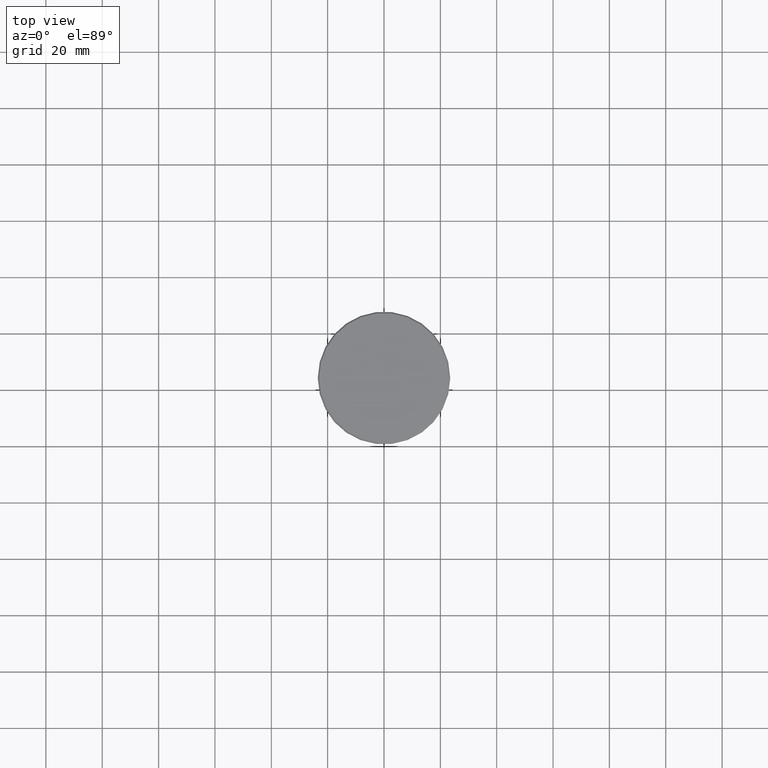
[diagram: clean part render]
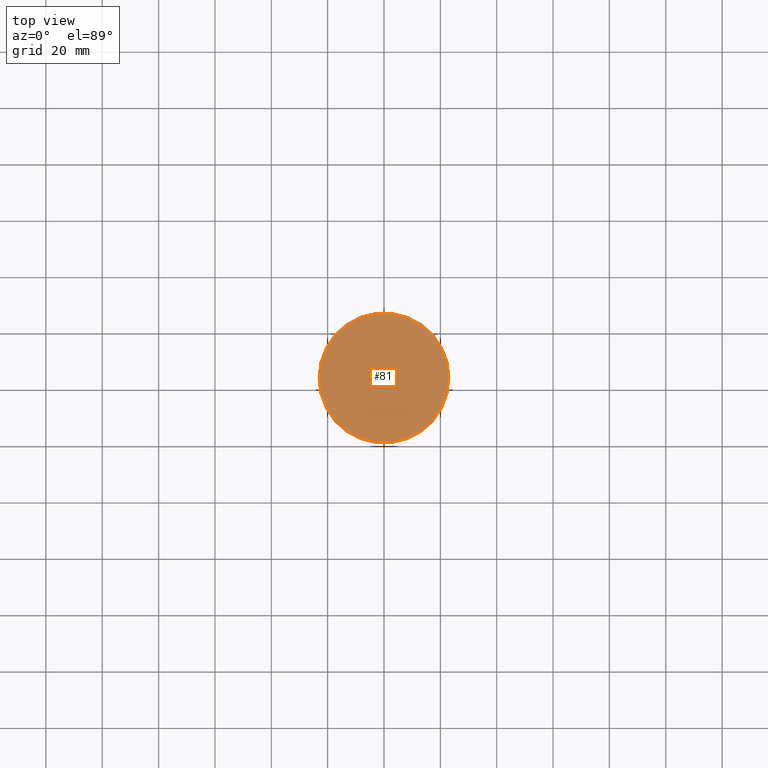
[diagram: same view with one face highlighted and labeled with its STEP entity id]
A machine part, top view. The second image highlights one B-rep face of the part: STEP entity #81.
In plain terms, the highlighted planar face has unit normal (0, -0, 1).
Its self-contained STEP definition (entity closure, byte-faithful):
#30 = CARTESIAN_POINT ( 'NONE',  ( 0.000000000000000000, 0.000000000000000000, 0.000000000000000000 ) ) ;
#81 = ADVANCED_FACE ( 'NONE', ( #412 ), #694, .T. ) ;
#232 = DIRECTION ( 'NONE',  ( 0.000000000000000000, -0.000000000000000000, 1.000000000000000000 ) ) ;
#239 = CARTESIAN_POINT ( 'NONE',  ( 0.000000000000000000, 0.000000000000000000, 0.000000000000000000 ) ) ;
#264 = CARTESIAN_POINT ( 'NONE',  ( -23.00000000000005329, 0.000000000000000000, 0.000000000000000000 ) ) ;
#268 = CARTESIAN_POINT ( 'NONE',  ( 23.00000000000005329, 2.847303808017599689E-15, 0.000000000000000000 ) ) ;
#334 = ORIENTED_EDGE ( 'NONE', *, *, #1103, .T. ) ;
#363 = DIRECTION ( 'NONE',  ( 1.000000000000000000, 0.000000000000000000, 0.000000000000000000 ) ) ;
#412 = FACE_OUTER_BOUND ( 'NONE', #564, .T. ) ;
#426 = CIRCLE ( 'NONE', #1043, 23.00000000000005329 ) ;
#451 = CARTESIAN_POINT ( 'NONE',  ( 0.000000000000000000, 0.000000000000000000, 0.000000000000000000 ) ) ;
#496 = DIRECTION ( 'NONE',  ( -0.000000000000000000, -0.000000000000000000, 1.000000000000000000 ) ) ;
#564 = EDGE_LOOP ( 'NONE', ( #334, #665 ) ) ;
#665 = ORIENTED_EDGE ( 'NONE', *, *, #699, .T. ) ;
#694 = PLANE ( 'NONE',  #1113 ) ;
#699 = EDGE_CURVE ( 'NONE', #902, #1010, #426, .T. ) ;
#743 = CIRCLE ( 'NONE', #781, 23.00000000000005329 ) ;
#781 = AXIS2_PLACEMENT_3D ( 'NONE', #451, #830, #363 ) ;
#830 = DIRECTION ( 'NONE',  ( -0.000000000000000000, -0.000000000000000000, 1.000000000000000000 ) ) ;
#883 = DIRECTION ( 'NONE',  ( 1.000000000000000000, 0.000000000000000000, 0.000000000000000000 ) ) ;
#902 = VERTEX_POINT ( 'NONE', #268 ) ;
#1010 = VERTEX_POINT ( 'NONE', #264 ) ;
#1029 = DIRECTION ( 'NONE',  ( 1.000000000000000000, 0.000000000000000000, 0.000000000000000000 ) ) ;
#1043 = AXIS2_PLACEMENT_3D ( 'NONE', #30, #496, #1029 ) ;
#1103 = EDGE_CURVE ( 'NONE', #1010, #902, #743, .T. ) ;
#1113 = AXIS2_PLACEMENT_3D ( 'NONE', #239, #232, #883 ) ;